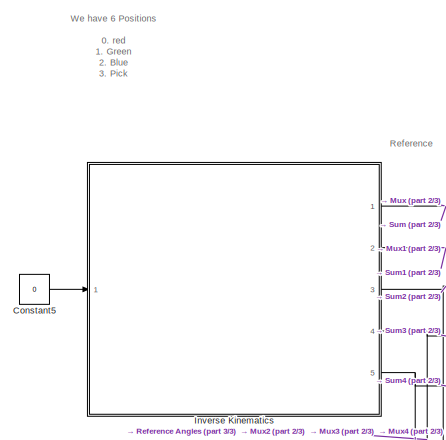
[diagram: root canvas - part 1/3, top left region]
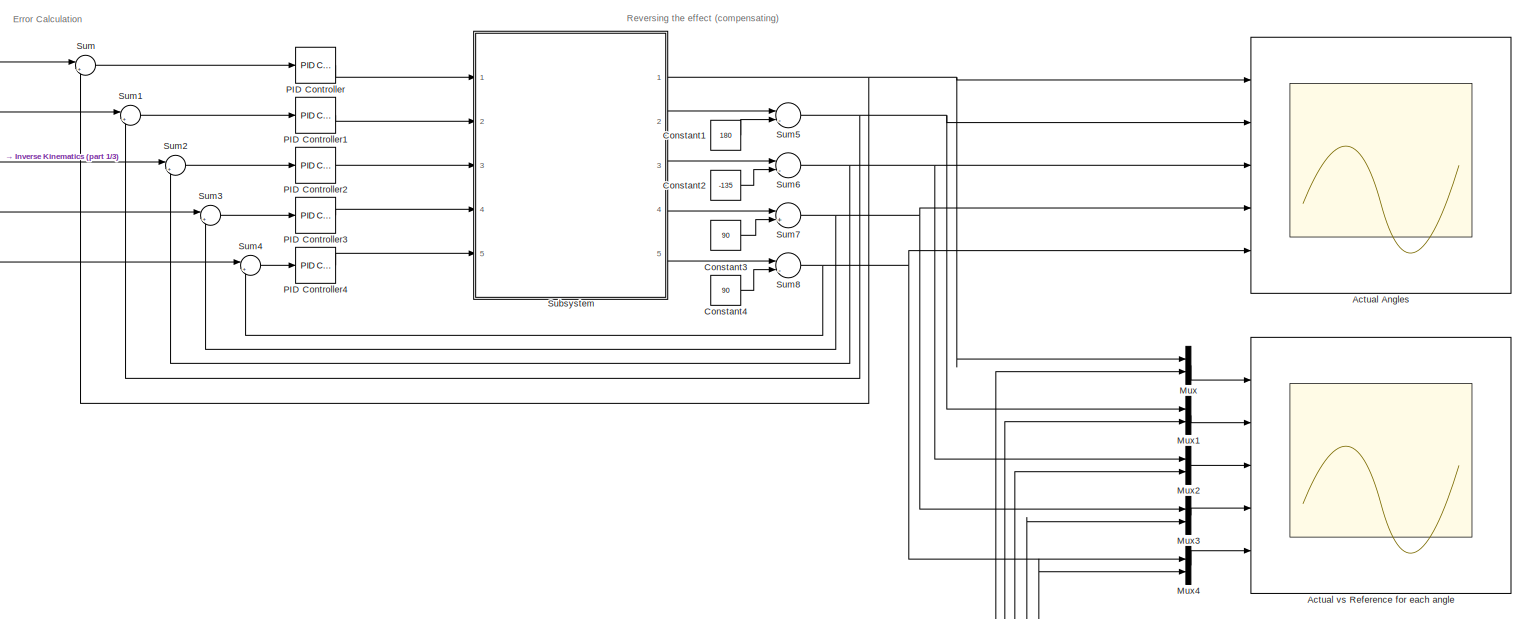
[diagram: root canvas - part 2/3, full width, middle band]
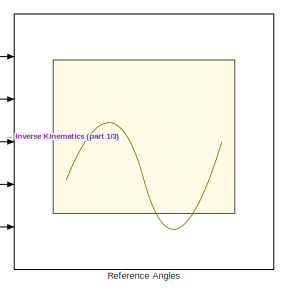
[diagram: root canvas - part 3/3, bottom right region]
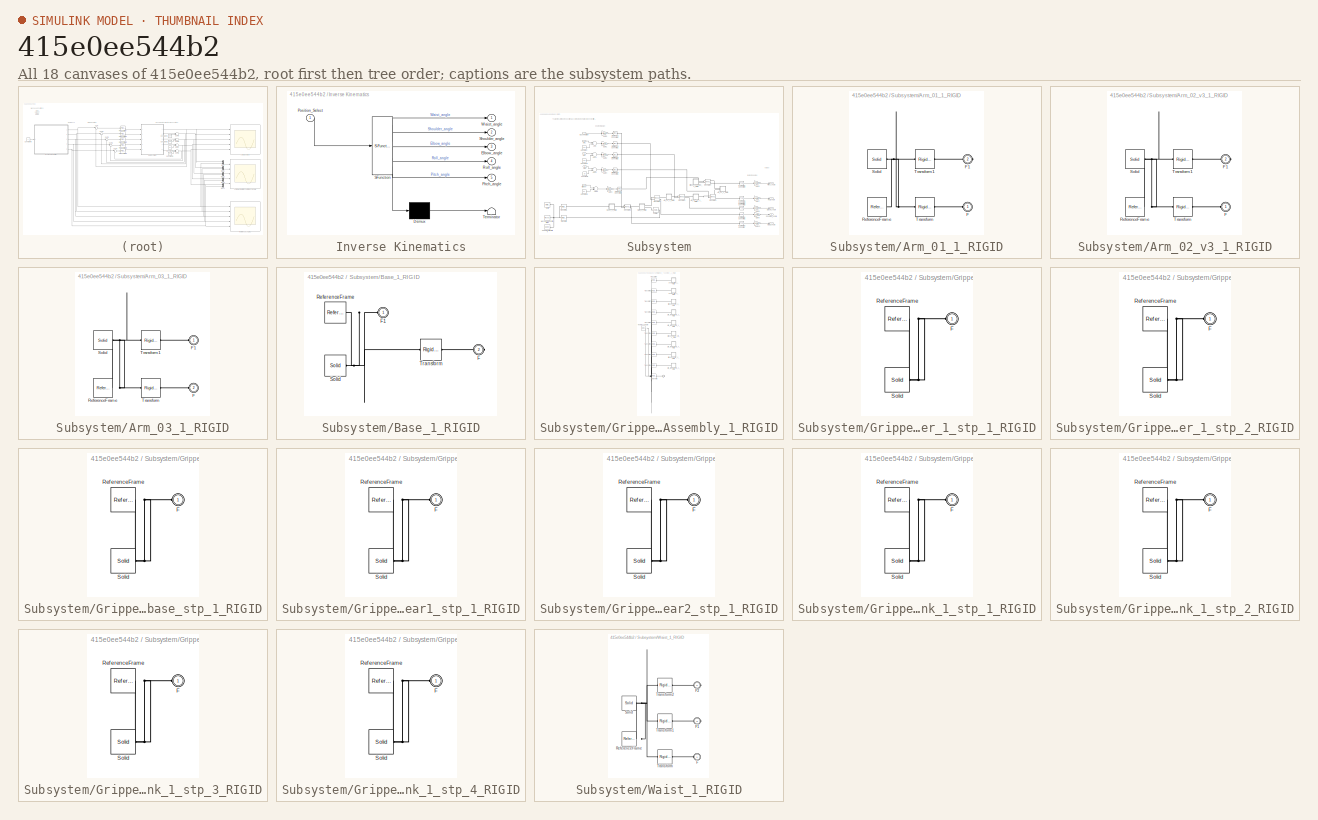
[diagram: thumbnail index - all 18 canvases of the model, root first then tree order]
MODEL slx_415e0ee544b2
KIND model
CONFIG AbsTol = auto
CONFIG EnableMultiTasking = off
CONFIG FixedStep = auto
CONFIG MaxStep = auto
CONFIG MinStep = auto
CONFIG RelTol = 1e-3
CONFIG SampleTimeConstraint = Unconstrained
CONFIG Solver = VariableStepAuto
CONFIG SolverName = VariableStepAuto
CONFIG StartTime = 0.0
CONFIG StopTime = inf
WORKSPACE source: external: MATLAB File  (data not in archive)
BLOCK [Scope] Actual Angles
  Floating = off
  NumInputPorts = 5
  Ports = [5]
  ScopeSpecificationString = Simulink.scopes.TimeScopeBlockCfg('CurrentConfiguration', extmgr.ConfigurationSet(extmgr.Configuration('Core','General UI',true),extmgr.Configuration('Core','Source UI',true),extmgr.Configuration('Sources','WiredSimulink',true),extmgr.Configuration('Visuals','Time Domain',true,'SerializedDisplays',{struct('MinYLimReal','-15.84536','MaxYLimReal','142.60824','YLabelReal','','MinYLimMag','0.00000','M...<+6246ch>
BLOCK [Scope] Actual vs Reference for each angle
  Floating = off
  NumInputPorts = 5
  Ports = [5]
  ScopeSpecificationString = Simulink.scopes.TimeScopeBlockCfg('CurrentConfiguration', extmgr.ConfigurationSet(extmgr.Configuration('Core','General UI',true),extmgr.Configuration('Core','Source UI',true),extmgr.Configuration('Sources','WiredSimulink',true,'DataLoggingVariableName','ScopeData1'),extmgr.Configuration('Visuals','Time Domain',true,'SerializedDisplays',{struct('MinYLimReal','-17.00000','MaxYLimReal','153.00000','Y...<+6468ch>
BLOCK [Constant] Constant1
  Value = 180
BLOCK [Constant] Constant2
  Value = -135
BLOCK [Constant] Constant3
  Value = 90
BLOCK [Constant] Constant4
  Value = 90
BLOCK [Constant] Constant5
  Value = 0
BLOCK [SubSystem] Inverse Kinematics
  ErrorFcn = Stateflow.Translate.translate
  PermitHierarchicalResolution = ExplicitOnly
  Ports = [1, 5]
  RequestExecContextInheritance = off
  SFBlockType = MATLAB Function
  TreatAsAtomicUnit = on
BLOCK [Demux] Inverse Kinematics/ Demux 
  Outputs = 1
  Ports = [1, 1]
BLOCK [S-Function] Inverse Kinematics/ SFunction 
  EnableBusSupport = on
  FunctionName = sf_sfun
  PortCounts = [1 6]
  Ports = [1, 6]
  SFcnIsStateOwnerBlock = off
  SFunctionDeploymentMode = off
  Tag = Stateflow S-Function RoboticArm3DModel_v4 2
BLOCK [Terminator] Inverse Kinematics/ Terminator 
BLOCK [Outport] Inverse Kinematics/Elbow_angle
  IconDisplay = Port number
  Port = 3
BLOCK [Outport] Inverse Kinematics/Pitch_angle
  IconDisplay = Port number
  Port = 5
BLOCK [Inport] Inverse Kinematics/Position_Select
  IconDisplay = Port number
BLOCK [Outport] Inverse Kinematics/Roll_angle
  IconDisplay = Port number
  Port = 4
BLOCK [Outport] Inverse Kinematics/Shoulder_angle
  IconDisplay = Port number
  Port = 2
BLOCK [Outport] Inverse Kinematics/Waist_angle
  IconDisplay = Port number
BLOCK [Mux] Mux
  DisplayOption = bar
  Inputs = 2
  Ports = [2, 1]
BLOCK [Mux] Mux1
  DisplayOption = bar
  Inputs = 2
  Ports = [2, 1]
BLOCK [Mux] Mux2
  DisplayOption = bar
  Inputs = 2
  Ports = [2, 1]
BLOCK [Mux] Mux3
  DisplayOption = bar
  Inputs = 2
  Ports = [2, 1]
BLOCK [Mux] Mux4
  DisplayOption = bar
  Inputs = 2
  Ports = [2, 1]
BLOCK [Reference] PID Controller  REF=simulink/Continuous/PID Controller
  Ports = [1, 1]
  SourceBlock = simulink/Continuous/PID Controller
  SourceProductBaseCode = SL
  SourceProductName = Simulink
  SourceType = PID 1dof
BLOCK [Reference] PID Controller1  REF=simulink/Continuous/PID Controller
  Ports = [1, 1]
  SourceBlock = simulink/Continuous/PID Controller
  SourceProductBaseCode = SL
  SourceProductName = Simulink
  SourceType = PID 1dof
BLOCK [Reference] PID Controller2  REF=simulink/Continuous/PID Controller
  Ports = [1, 1]
  SourceBlock = simulink/Continuous/PID Controller
  SourceProductBaseCode = SL
  SourceProductName = Simulink
  SourceType = PID 1dof
BLOCK [Reference] PID Controller3  REF=simulink/Continuous/PID Controller
  Ports = [1, 1]
  SourceBlock = simulink/Continuous/PID Controller
  SourceProductBaseCode = SL
  SourceProductName = Simulink
  SourceType = PID 1dof
BLOCK [Reference] PID Controller4  REF=simulink/Continuous/PID Controller
  Ports = [1, 1]
  SourceBlock = simulink/Continuous/PID Controller
  SourceProductBaseCode = SL
  SourceProductName = Simulink
  SourceType = PID 1dof
BLOCK [Scope] Reference Angles
  Floating = off
  NumInputPorts = 5
  Ports = [5]
  ScopeSpecificationString = Simulink.scopes.TimeScopeBlockCfg('CurrentConfiguration', extmgr.ConfigurationSet(extmgr.Configuration('Core','General UI',true),extmgr.Configuration('Core','Source UI',true),extmgr.Configuration('Sources','WiredSimulink',true,'DataLoggingVariableName','ScopeData2'),extmgr.Configuration('Visuals','Time Domain',true,'SerializedDisplays',{struct('MinYLimReal','0.9','MaxYLimReal','1.1','YLabelReal','...<+6314ch>
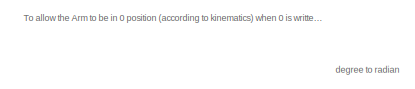
[diagram: Subsystem - part 1/3, top left region]
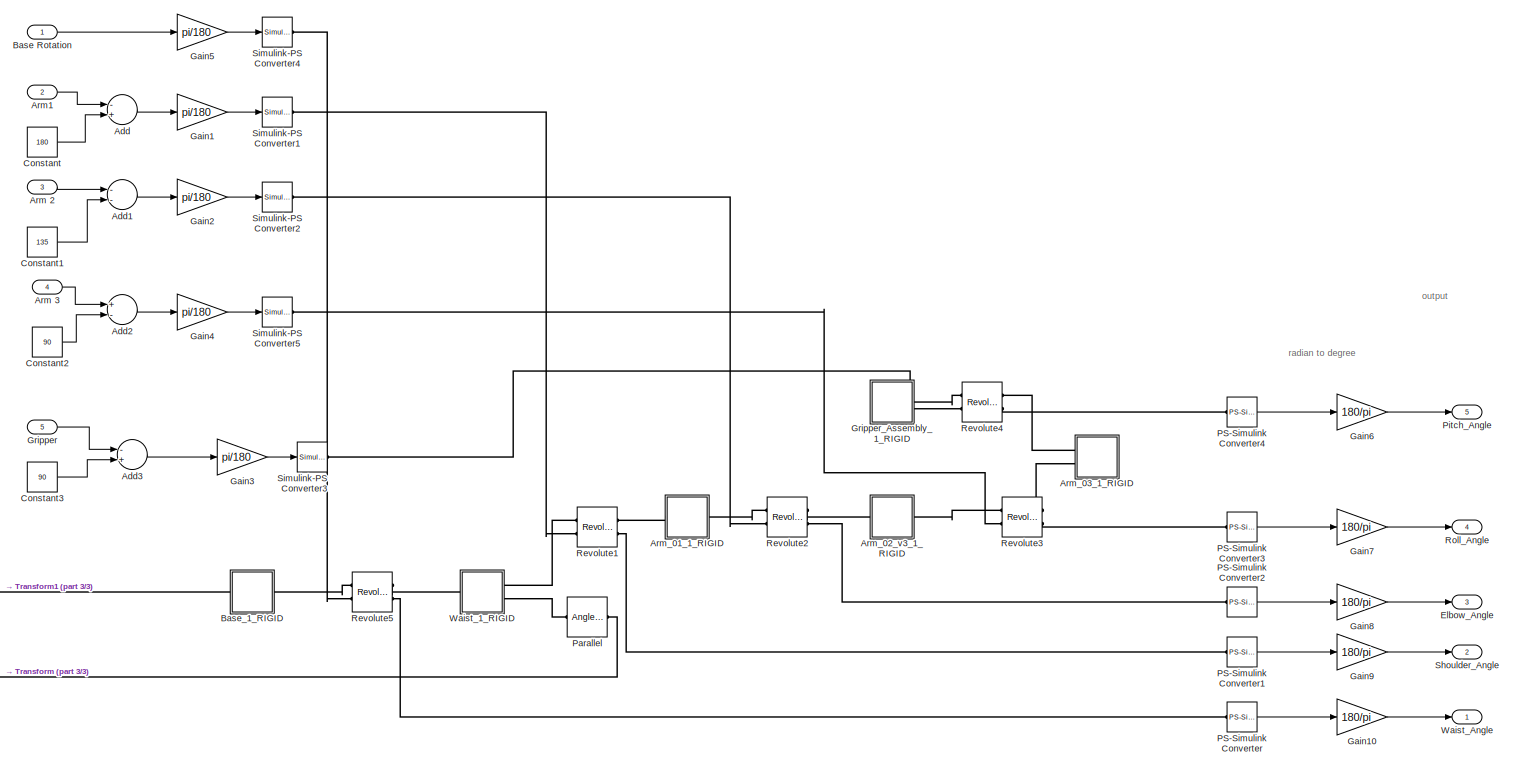
[diagram: Subsystem - part 2/3, most of the canvas]
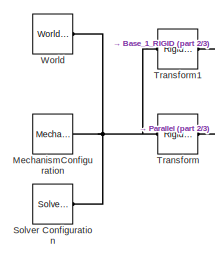
[diagram: Subsystem - part 3/3, bottom left region]
BLOCK [SubSystem] Subsystem
  Ports = [5, 5]
  RequestExecContextInheritance = off
BLOCK [Inport] Subsystem/ Arm 3
  IconDisplay = Port number
  Port = 4
BLOCK [Sum] Subsystem/Add
  InputSameDT = off
  Inputs = -+
  OutDataTypeStr = Inherit: Inherit via internal rule
  Ports = [2, 1]
  SaturateOnIntegerOverflow = off
BLOCK [Sum] Subsystem/Add1
  InputSameDT = off
  Inputs = --
  OutDataTypeStr = Inherit: Inherit via internal rule
  Ports = [2, 1]
  SaturateOnIntegerOverflow = off
BLOCK [Sum] Subsystem/Add2
  InputSameDT = off
  Inputs = +-
  OutDataTypeStr = Inherit: Inherit via internal rule
  Ports = [2, 1]
  SaturateOnIntegerOverflow = off
BLOCK [Sum] Subsystem/Add3
  InputSameDT = off
  Inputs = -+
  OutDataTypeStr = Inherit: Inherit via internal rule
  Ports = [2, 1]
  SaturateOnIntegerOverflow = off
BLOCK [Inport] Subsystem/Arm 2
  IconDisplay = Port number
  Port = 3
BLOCK [Inport] Subsystem/Arm1
  IconDisplay = Port number
  Port = 2
BLOCK [SubSystem] Subsystem/Arm_01_1_RIGID
  Ports = [0, 0, 0, 0, 0, 1, 1]
  RequestExecContextInheritance = off
BLOCK [PMIOPort] Subsystem/Arm_01_1_RIGID/F
  Side = Left
BLOCK [PMIOPort] Subsystem/Arm_01_1_RIGID/F1
  Port = 2
  Side = Right
BLOCK [Reference] Subsystem/Arm_01_1_RIGID/ReferenceFrame  REF=sm_lib/Frames and
Transforms/Reference
Frame
  Ports = [0, 0, 0, 0, 0, 0, 1]
  SourceBlock = sm_lib/Frames and\nTransforms/Reference\nFrame
  SourceProductBaseCode = MS
  SourceProductName = Simscape Multibody
  SourceType = Reference\nFrame
BLOCK [Reference] Subsystem/Arm_01_1_RIGID/Solid  REF=sm_lib/Body Elements/Solid
  Ports = [0, 0, 0, 0, 0, 0, 1]
  SourceBlock = sm_lib/Body Elements/Solid
  SourceProductBaseCode = MS
  SourceProductName = Simscape Multibody
  SourceType = Solid
BLOCK [Reference] Subsystem/Arm_01_1_RIGID/Transform  REF=sm_lib/Frames and
Transforms/Rigid
Transform
  Ports = [0, 0, 0, 0, 0, 1, 1]
  SourceBlock = sm_lib/Frames and\nTransforms/Rigid\nTransform
  SourceProductBaseCode = MS
  SourceProductName = Simscape Multibody
  SourceType = Rigid\nTransform
BLOCK [Reference] Subsystem/Arm_01_1_RIGID/Transform1  REF=sm_lib/Frames and
Transforms/Rigid
Transform
  Ports = [0, 0, 0, 0, 0, 1, 1]
  SourceBlock = sm_lib/Frames and\nTransforms/Rigid\nTransform
  SourceProductBaseCode = MS
  SourceProductName = Simscape Multibody
  SourceType = Rigid\nTransform
BLOCK [SubSystem] Subsystem/Arm_02_v3_1_RIGID
  Ports = [0, 0, 0, 0, 0, 1, 1]
  RequestExecContextInheritance = off
BLOCK [PMIOPort] Subsystem/Arm_02_v3_1_RIGID/F
  Side = Left
BLOCK [PMIOPort] Subsystem/Arm_02_v3_1_RIGID/F1
  Port = 2
  Side = Right
BLOCK [Reference] Subsystem/Arm_02_v3_1_RIGID/ReferenceFrame  REF=sm_lib/Frames and
Transforms/Reference
Frame
  Ports = [0, 0, 0, 0, 0, 0, 1]
  SourceBlock = sm_lib/Frames and\nTransforms/Reference\nFrame
  SourceProductBaseCode = MS
  SourceProductName = Simscape Multibody
  SourceType = Reference\nFrame
BLOCK [Reference] Subsystem/Arm_02_v3_1_RIGID/Solid  REF=sm_lib/Body Elements/Solid
  Ports = [0, 0, 0, 0, 0, 0, 1]
  SourceBlock = sm_lib/Body Elements/Solid
  SourceProductBaseCode = MS
  SourceProductName = Simscape Multibody
  SourceType = Solid
BLOCK [Reference] Subsystem/Arm_02_v3_1_RIGID/Transform  REF=sm_lib/Frames and
Transforms/Rigid
Transform
  Ports = [0, 0, 0, 0, 0, 1, 1]
  SourceBlock = sm_lib/Frames and\nTransforms/Rigid\nTransform
  SourceProductBaseCode = MS
  SourceProductName = Simscape Multibody
  SourceType = Rigid\nTransform
BLOCK [Reference] Subsystem/Arm_02_v3_1_RIGID/Transform1  REF=sm_lib/Frames and
Transforms/Rigid
Transform
  Ports = [0, 0, 0, 0, 0, 1, 1]
  SourceBlock = sm_lib/Frames and\nTransforms/Rigid\nTransform
  SourceProductBaseCode = MS
  SourceProductName = Simscape Multibody
  SourceType = Rigid\nTransform
BLOCK [SubSystem] Subsystem/Arm_03_1_RIGID
  Ports = [0, 0, 0, 0, 0, 2]
  RequestExecContextInheritance = off
BLOCK [PMIOPort] Subsystem/Arm_03_1_RIGID/F
  Port = 2
  Side = Left
BLOCK [PMIOPort] Subsystem/Arm_03_1_RIGID/F1
  Side = Left
BLOCK [Reference] Subsystem/Arm_03_1_RIGID/ReferenceFrame  REF=sm_lib/Frames and
Transforms/Reference
Frame
  Ports = [0, 0, 0, 0, 0, 0, 1]
  SourceBlock = sm_lib/Frames and\nTransforms/Reference\nFrame
  SourceProductBaseCode = MS
  SourceProductName = Simscape Multibody
  SourceType = Reference\nFrame
BLOCK [Reference] Subsystem/Arm_03_1_RIGID/Solid  REF=sm_lib/Body Elements/Solid
  Ports = [0, 0, 0, 0, 0, 0, 1]
  SourceBlock = sm_lib/Body Elements/Solid
  SourceProductBaseCode = MS
  SourceProductName = Simscape Multibody
  SourceType = Solid
BLOCK [Reference] Subsystem/Arm_03_1_RIGID/Transform  REF=sm_lib/Frames and
Transforms/Rigid
Transform
  Ports = [0, 0, 0, 0, 0, 1, 1]
  SourceBlock = sm_lib/Frames and\nTransforms/Rigid\nTransform
  SourceProductBaseCode = MS
  SourceProductName = Simscape Multibody
  SourceType = Rigid\nTransform
BLOCK [Reference] Subsystem/Arm_03_1_RIGID/Transform1  REF=sm_lib/Frames and
Transforms/Rigid
Transform
  Ports = [0, 0, 0, 0, 0, 1, 1]
  SourceBlock = sm_lib/Frames and\nTransforms/Rigid\nTransform
  SourceProductBaseCode = MS
  SourceProductName = Simscape Multibody
  SourceType = Rigid\nTransform
BLOCK [Inport] Subsystem/Base Rotation
  IconDisplay = Port number
BLOCK [SubSystem] Subsystem/Base_1_RIGID
  Ports = [0, 0, 0, 0, 0, 1, 1]
  RequestExecContextInheritance = off
BLOCK [PMIOPort] Subsystem/Base_1_RIGID/F
  Port = 2
  Side = Right
BLOCK [PMIOPort] Subsystem/Base_1_RIGID/F1
  Side = Left
BLOCK [Reference] Subsystem/Base_1_RIGID/ReferenceFrame  REF=sm_lib/Frames and
Transforms/Reference
Frame
  Ports = [0, 0, 0, 0, 0, 0, 1]
  SourceBlock = sm_lib/Frames and\nTransforms/Reference\nFrame
  SourceProductBaseCode = MS
  SourceProductName = Simscape Multibody
  SourceType = Reference\nFrame
BLOCK [Reference] Subsystem/Base_1_RIGID/Solid  REF=sm_lib/Body Elements/Solid
  Ports = [0, 0, 0, 0, 0, 0, 1]
  SourceBlock = sm_lib/Body Elements/Solid
  SourceProductBaseCode = MS
  SourceProductName = Simscape Multibody
  SourceType = Solid
BLOCK [Reference] Subsystem/Base_1_RIGID/Transform  REF=sm_lib/Frames and
Transforms/Rigid
Transform
  Ports = [0, 0, 0, 0, 0, 1, 1]
  SourceBlock = sm_lib/Frames and\nTransforms/Rigid\nTransform
  SourceProductBaseCode = MS
  SourceProductName = Simscape Multibody
  SourceType = Rigid\nTransform
BLOCK [Constant] Subsystem/Constant
  Value = 180
BLOCK [Constant] Subsystem/Constant1
  Value = 135
BLOCK [Constant] Subsystem/Constant2
  Value = 90
BLOCK [Constant] Subsystem/Constant3
  Value = 90
BLOCK [Outport] Subsystem/Elbow_Angle
  IconDisplay = Port number
  Port = 3
BLOCK [Gain] Subsystem/Gain1
  Gain = pi/180
  OutDataTypeStr = Inherit: Inherit via internal rule
  ParamDataTypeStr = Inherit: Inherit via internal rule
  SaturateOnIntegerOverflow = off
BLOCK [Gain] Subsystem/Gain10
  Gain = 180/pi
  OutDataTypeStr = Inherit: Inherit via internal rule
  ParamDataTypeStr = Inherit: Inherit via internal rule
  SaturateOnIntegerOverflow = off
BLOCK [Gain] Subsystem/Gain2
  Gain = pi/180
  OutDataTypeStr = Inherit: Inherit via internal rule
  ParamDataTypeStr = Inherit: Inherit via internal rule
  SaturateOnIntegerOverflow = off
BLOCK [Gain] Subsystem/Gain3
  Gain = pi/180
  OutDataTypeStr = Inherit: Inherit via internal rule
  ParamDataTypeStr = Inherit: Inherit via internal rule
  SaturateOnIntegerOverflow = off
BLOCK [Gain] Subsystem/Gain4
  Gain = pi/180
  OutDataTypeStr = Inherit: Inherit via internal rule
  ParamDataTypeStr = Inherit: Inherit via internal rule
  SaturateOnIntegerOverflow = off
BLOCK [Gain] Subsystem/Gain5
  Gain = pi/180
  OutDataTypeStr = Inherit: Inherit via internal rule
  ParamDataTypeStr = Inherit: Inherit via internal rule
  SaturateOnIntegerOverflow = off
BLOCK [Gain] Subsystem/Gain6
  Gain = 180/pi
  OutDataTypeStr = Inherit: Inherit via internal rule
  ParamDataTypeStr = Inherit: Inherit via internal rule
  SaturateOnIntegerOverflow = off
BLOCK [Gain] Subsystem/Gain7
  Gain = 180/pi
  OutDataTypeStr = Inherit: Inherit via internal rule
  ParamDataTypeStr = Inherit: Inherit via internal rule
  SaturateOnIntegerOverflow = off
BLOCK [Gain] Subsystem/Gain8
  Gain = 180/pi
  OutDataTypeStr = Inherit: Inherit via internal rule
  ParamDataTypeStr = Inherit: Inherit via internal rule
  SaturateOnIntegerOverflow = off
BLOCK [Gain] Subsystem/Gain9
  Gain = 180/pi
  OutDataTypeStr = Inherit: Inherit via internal rule
  ParamDataTypeStr = Inherit: Inherit via internal rule
  SaturateOnIntegerOverflow = off
BLOCK [Inport] Subsystem/Gripper
  IconDisplay = Port number
  Port = 5
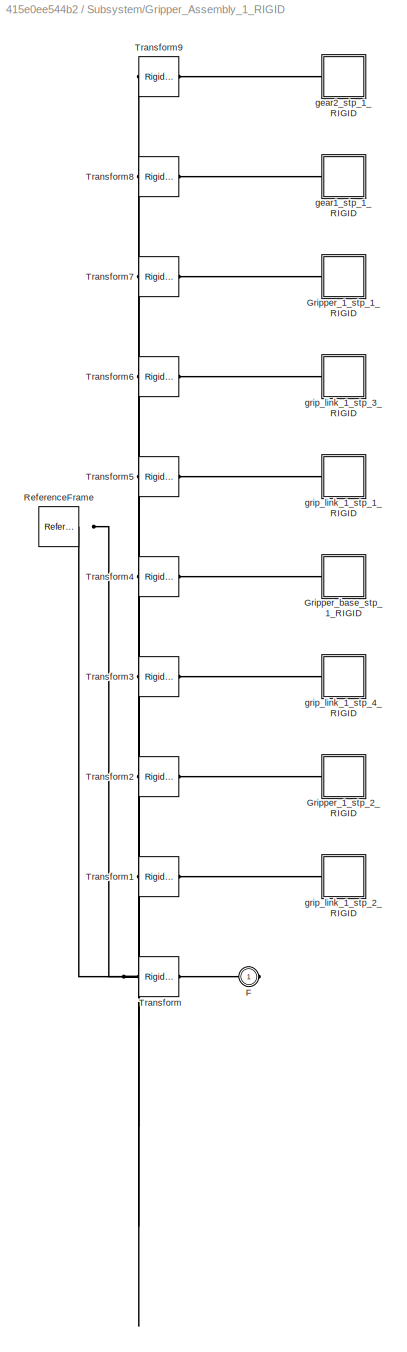
BLOCK [SubSystem] Subsystem/Gripper_Assembly_1_RIGID
  Ports = [0, 0, 0, 0, 0, 0, 1]
  RequestExecContextInheritance = off
BLOCK [PMIOPort] Subsystem/Gripper_Assembly_1_RIGID/F
  Side = Right
BLOCK [SubSystem] Subsystem/Gripper_Assembly_1_RIGID/Gripper_1_stp_1_RIGID
  Ports = [0, 0, 0, 0, 0, 1]
  RequestExecContextInheritance = off
BLOCK [PMIOPort] Subsystem/Gripper_Assembly_1_RIGID/Gripper_1_stp_1_RIGID/F
  Side = Left
BLOCK [Reference] Subsystem/Gripper_Assembly_1_RIGID/Gripper_1_stp_1_RIGID/ReferenceFrame  REF=sm_lib/Frames and
Transforms/Reference
Frame
  Ports = [0, 0, 0, 0, 0, 0, 1]
  SourceBlock = sm_lib/Frames and\nTransforms/Reference\nFrame
  SourceProductBaseCode = MS
  SourceProductName = Simscape Multibody
  SourceType = Reference\nFrame
BLOCK [Reference] Subsystem/Gripper_Assembly_1_RIGID/Gripper_1_stp_1_RIGID/Solid  REF=sm_lib/Body Elements/Solid
  Ports = [0, 0, 0, 0, 0, 0, 1]
  SourceBlock = sm_lib/Body Elements/Solid
  SourceProductBaseCode = MS
  SourceProductName = Simscape Multibody
  SourceType = Solid
BLOCK [SubSystem] Subsystem/Gripper_Assembly_1_RIGID/Gripper_1_stp_2_RIGID
  Ports = [0, 0, 0, 0, 0, 1]
  RequestExecContextInheritance = off
BLOCK [PMIOPort] Subsystem/Gripper_Assembly_1_RIGID/Gripper_1_stp_2_RIGID/F
  Side = Left
BLOCK [Reference] Subsystem/Gripper_Assembly_1_RIGID/Gripper_1_stp_2_RIGID/ReferenceFrame  REF=sm_lib/Frames and
Transforms/Reference
Frame
  Ports = [0, 0, 0, 0, 0, 0, 1]
  SourceBlock = sm_lib/Frames and\nTransforms/Reference\nFrame
  SourceProductBaseCode = MS
  SourceProductName = Simscape Multibody
  SourceType = Reference\nFrame
BLOCK [Reference] Subsystem/Gripper_Assembly_1_RIGID/Gripper_1_stp_2_RIGID/Solid  REF=sm_lib/Body Elements/Solid
  Ports = [0, 0, 0, 0, 0, 0, 1]
  SourceBlock = sm_lib/Body Elements/Solid
  SourceProductBaseCode = MS
  SourceProductName = Simscape Multibody
  SourceType = Solid
BLOCK [SubSystem] Subsystem/Gripper_Assembly_1_RIGID/Gripper_base_stp_1_RIGID
  Ports = [0, 0, 0, 0, 0, 1]
  RequestExecContextInheritance = off
BLOCK [PMIOPort] Subsystem/Gripper_Assembly_1_RIGID/Gripper_base_stp_1_RIGID/F
  Side = Left
BLOCK [Reference] Subsystem/Gripper_Assembly_1_RIGID/Gripper_base_stp_1_RIGID/ReferenceFrame  REF=sm_lib/Frames and
Transforms/Reference
Frame
  Ports = [0, 0, 0, 0, 0, 0, 1]
  SourceBlock = sm_lib/Frames and\nTransforms/Reference\nFrame
  SourceProductBaseCode = MS
  SourceProductName = Simscape Multibody
  SourceType = Reference\nFrame
BLOCK [Reference] Subsystem/Gripper_Assembly_1_RIGID/Gripper_base_stp_1_RIGID/Solid  REF=sm_lib/Body Elements/Solid
  Ports = [0, 0, 0, 0, 0, 0, 1]
  SourceBlock = sm_lib/Body Elements/Solid
  SourceProductBaseCode = MS
  SourceProductName = Simscape Multibody
  SourceType = Solid
BLOCK [Reference] Subsystem/Gripper_Assembly_1_RIGID/ReferenceFrame  REF=sm_lib/Frames and
Transforms/Reference
Frame
  Ports = [0, 0, 0, 0, 0, 0, 1]
  SourceBlock = sm_lib/Frames and\nTransforms/Reference\nFrame
  SourceProductBaseCode = MS
  SourceProductName = Simscape Multibody
  SourceType = Reference\nFrame
BLOCK [Reference] Subsystem/Gripper_Assembly_1_RIGID/Transform  REF=sm_lib/Frames and
Transforms/Rigid
Transform
  Ports = [0, 0, 0, 0, 0, 1, 1]
  SourceBlock = sm_lib/Frames and\nTransforms/Rigid\nTransform
  SourceProductBaseCode = MS
  SourceProductName = Simscape Multibody
  SourceType = Rigid\nTransform
BLOCK [Reference] Subsystem/Gripper_Assembly_1_RIGID/Transform1  REF=sm_lib/Frames and
Transforms/Rigid
Transform
  Ports = [0, 0, 0, 0, 0, 1, 1]
  SourceBlock = sm_lib/Frames and\nTransforms/Rigid\nTransform
  SourceProductBaseCode = MS
  SourceProductName = Simscape Multibody
  SourceType = Rigid\nTransform
BLOCK [Reference] Subsystem/Gripper_Assembly_1_RIGID/Transform2  REF=sm_lib/Frames and
Transforms/Rigid
Transform
  Ports = [0, 0, 0, 0, 0, 1, 1]
  SourceBlock = sm_lib/Frames and\nTransforms/Rigid\nTransform
  SourceProductBaseCode = MS
  SourceProductName = Simscape Multibody
  SourceType = Rigid\nTransform
BLOCK [Reference] Subsystem/Gripper_Assembly_1_RIGID/Transform3  REF=sm_lib/Frames and
Transforms/Rigid
Transform
  Ports = [0, 0, 0, 0, 0, 1, 1]
  SourceBlock = sm_lib/Frames and\nTransforms/Rigid\nTransform
  SourceProductBaseCode = MS
  SourceProductName = Simscape Multibody
  SourceType = Rigid\nTransform
BLOCK [Reference] Subsystem/Gripper_Assembly_1_RIGID/Transform4  REF=sm_lib/Frames and
Transforms/Rigid
Transform
  Ports = [0, 0, 0, 0, 0, 1, 1]
  SourceBlock = sm_lib/Frames and\nTransforms/Rigid\nTransform
  SourceProductBaseCode = MS
  SourceProductName = Simscape Multibody
  SourceType = Rigid\nTransform
BLOCK [Reference] Subsystem/Gripper_Assembly_1_RIGID/Transform5  REF=sm_lib/Frames and
Transforms/Rigid
Transform
  Ports = [0, 0, 0, 0, 0, 1, 1]
  SourceBlock = sm_lib/Frames and\nTransforms/Rigid\nTransform
  SourceProductBaseCode = MS
  SourceProductName = Simscape Multibody
  SourceType = Rigid\nTransform
BLOCK [Reference] Subsystem/Gripper_Assembly_1_RIGID/Transform6  REF=sm_lib/Frames and
Transforms/Rigid
Transform
  Ports = [0, 0, 0, 0, 0, 1, 1]
  SourceBlock = sm_lib/Frames and\nTransforms/Rigid\nTransform
  SourceProductBaseCode = MS
  SourceProductName = Simscape Multibody
  SourceType = Rigid\nTransform
BLOCK [Reference] Subsystem/Gripper_Assembly_1_RIGID/Transform7  REF=sm_lib/Frames and
Transforms/Rigid
Transform
  Ports = [0, 0, 0, 0, 0, 1, 1]
  SourceBlock = sm_lib/Frames and\nTransforms/Rigid\nTransform
  SourceProductBaseCode = MS
  SourceProductName = Simscape Multibody
  SourceType = Rigid\nTransform
BLOCK [Reference] Subsystem/Gripper_Assembly_1_RIGID/Transform8  REF=sm_lib/Frames and
Transforms/Rigid
Transform
  Ports = [0, 0, 0, 0, 0, 1, 1]
  SourceBlock = sm_lib/Frames and\nTransforms/Rigid\nTransform
  SourceProductBaseCode = MS
  SourceProductName = Simscape Multibody
  SourceType = Rigid\nTransform
BLOCK [Reference] Subsystem/Gripper_Assembly_1_RIGID/Transform9  REF=sm_lib/Frames and
Transforms/Rigid
Transform
  Ports = [0, 0, 0, 0, 0, 1, 1]
  SourceBlock = sm_lib/Frames and\nTransforms/Rigid\nTransform
  SourceProductBaseCode = MS
  SourceProductName = Simscape Multibody
  SourceType = Rigid\nTransform
BLOCK [SubSystem] Subsystem/Gripper_Assembly_1_RIGID/gear1_stp_1_RIGID
  Ports = [0, 0, 0, 0, 0, 1]
  RequestExecContextInheritance = off
BLOCK [PMIOPort] Subsystem/Gripper_Assembly_1_RIGID/gear1_stp_1_RIGID/F
  Side = Left
BLOCK [Reference] Subsystem/Gripper_Assembly_1_RIGID/gear1_stp_1_RIGID/ReferenceFrame  REF=sm_lib/Frames and
Transforms/Reference
Frame
  Ports = [0, 0, 0, 0, 0, 0, 1]
  SourceBlock = sm_lib/Frames and\nTransforms/Reference\nFrame
  SourceProductBaseCode = MS
  SourceProductName = Simscape Multibody
  SourceType = Reference\nFrame
BLOCK [Reference] Subsystem/Gripper_Assembly_1_RIGID/gear1_stp_1_RIGID/Solid  REF=sm_lib/Body Elements/Solid
  Ports = [0, 0, 0, 0, 0, 0, 1]
  SourceBlock = sm_lib/Body Elements/Solid
  SourceProductBaseCode = MS
  SourceProductName = Simscape Multibody
  SourceType = Solid
BLOCK [SubSystem] Subsystem/Gripper_Assembly_1_RIGID/gear2_stp_1_RIGID
  Ports = [0, 0, 0, 0, 0, 1]
  RequestExecContextInheritance = off
BLOCK [PMIOPort] Subsystem/Gripper_Assembly_1_RIGID/gear2_stp_1_RIGID/F
  Side = Left
BLOCK [Reference] Subsystem/Gripper_Assembly_1_RIGID/gear2_stp_1_RIGID/ReferenceFrame  REF=sm_lib/Frames and
Transforms/Reference
Frame
  Ports = [0, 0, 0, 0, 0, 0, 1]
  SourceBlock = sm_lib/Frames and\nTransforms/Reference\nFrame
  SourceProductBaseCode = MS
  SourceProductName = Simscape Multibody
  SourceType = Reference\nFrame
BLOCK [Reference] Subsystem/Gripper_Assembly_1_RIGID/gear2_stp_1_RIGID/Solid  REF=sm_lib/Body Elements/Solid
  Ports = [0, 0, 0, 0, 0, 0, 1]
  SourceBlock = sm_lib/Body Elements/Solid
  SourceProductBaseCode = MS
  SourceProductName = Simscape Multibody
  SourceType = Solid
BLOCK [SubSystem] Subsystem/Gripper_Assembly_1_RIGID/grip_link_1_stp_1_RIGID
  Ports = [0, 0, 0, 0, 0, 1]
  RequestExecContextInheritance = off
BLOCK [PMIOPort] Subsystem/Gripper_Assembly_1_RIGID/grip_link_1_stp_1_RIGID/F
  Side = Left
BLOCK [Reference] Subsystem/Gripper_Assembly_1_RIGID/grip_link_1_stp_1_RIGID/ReferenceFrame  REF=sm_lib/Frames and
Transforms/Reference
Frame
  Ports = [0, 0, 0, 0, 0, 0, 1]
  SourceBlock = sm_lib/Frames and\nTransforms/Reference\nFrame
  SourceProductBaseCode = MS
  SourceProductName = Simscape Multibody
  SourceType = Reference\nFrame
BLOCK [Reference] Subsystem/Gripper_Assembly_1_RIGID/grip_link_1_stp_1_RIGID/Solid  REF=sm_lib/Body Elements/Solid
  Ports = [0, 0, 0, 0, 0, 0, 1]
  SourceBlock = sm_lib/Body Elements/Solid
  SourceProductBaseCode = MS
  SourceProductName = Simscape Multibody
  SourceType = Solid
BLOCK [SubSystem] Subsystem/Gripper_Assembly_1_RIGID/grip_link_1_stp_2_RIGID
  Ports = [0, 0, 0, 0, 0, 1]
  RequestExecContextInheritance = off
BLOCK [PMIOPort] Subsystem/Gripper_Assembly_1_RIGID/grip_link_1_stp_2_RIGID/F
  Side = Left
BLOCK [Reference] Subsystem/Gripper_Assembly_1_RIGID/grip_link_1_stp_2_RIGID/ReferenceFrame  REF=sm_lib/Frames and
Transforms/Reference
Frame
  Ports = [0, 0, 0, 0, 0, 0, 1]
  SourceBlock = sm_lib/Frames and\nTransforms/Reference\nFrame
  SourceProductBaseCode = MS
  SourceProductName = Simscape Multibody
  SourceType = Reference\nFrame
BLOCK [Reference] Subsystem/Gripper_Assembly_1_RIGID/grip_link_1_stp_2_RIGID/Solid  REF=sm_lib/Body Elements/Solid
  Ports = [0, 0, 0, 0, 0, 0, 1]
  SourceBlock = sm_lib/Body Elements/Solid
  SourceProductBaseCode = MS
  SourceProductName = Simscape Multibody
  SourceType = Solid
BLOCK [SubSystem] Subsystem/Gripper_Assembly_1_RIGID/grip_link_1_stp_3_RIGID
  Ports = [0, 0, 0, 0, 0, 1]
  RequestExecContextInheritance = off
BLOCK [PMIOPort] Subsystem/Gripper_Assembly_1_RIGID/grip_link_1_stp_3_RIGID/F
  Side = Left
BLOCK [Reference] Subsystem/Gripper_Assembly_1_RIGID/grip_link_1_stp_3_RIGID/ReferenceFrame  REF=sm_lib/Frames and
Transforms/Reference
Frame
  Ports = [0, 0, 0, 0, 0, 0, 1]
  SourceBlock = sm_lib/Frames and\nTransforms/Reference\nFrame
  SourceProductBaseCode = MS
  SourceProductName = Simscape Multibody
  SourceType = Reference\nFrame
BLOCK [Reference] Subsystem/Gripper_Assembly_1_RIGID/grip_link_1_stp_3_RIGID/Solid  REF=sm_lib/Body Elements/Solid
  Ports = [0, 0, 0, 0, 0, 0, 1]
  SourceBlock = sm_lib/Body Elements/Solid
  SourceProductBaseCode = MS
  SourceProductName = Simscape Multibody
  SourceType = Solid
BLOCK [SubSystem] Subsystem/Gripper_Assembly_1_RIGID/grip_link_1_stp_4_RIGID
  Ports = [0, 0, 0, 0, 0, 1]
  RequestExecContextInheritance = off
BLOCK [PMIOPort] Subsystem/Gripper_Assembly_1_RIGID/grip_link_1_stp_4_RIGID/F
  Side = Left
BLOCK [Reference] Subsystem/Gripper_Assembly_1_RIGID/grip_link_1_stp_4_RIGID/ReferenceFrame  REF=sm_lib/Frames and
Transforms/Reference
Frame
  Ports = [0, 0, 0, 0, 0, 0, 1]
  SourceBlock = sm_lib/Frames and\nTransforms/Reference\nFrame
  SourceProductBaseCode = MS
  SourceProductName = Simscape Multibody
  SourceType = Reference\nFrame
BLOCK [Reference] Subsystem/Gripper_Assembly_1_RIGID/grip_link_1_stp_4_RIGID/Solid  REF=sm_lib/Body Elements/Solid
  Ports = [0, 0, 0, 0, 0, 0, 1]
  SourceBlock = sm_lib/Body Elements/Solid
  SourceProductBaseCode = MS
  SourceProductName = Simscape Multibody
  SourceType = Solid
BLOCK [Reference] Subsystem/MechanismConfiguration  REF=sm_lib/Utilities/Mechanism
Configuration
  Ports = [0, 0, 0, 0, 0, 0, 1]
  SourceBlock = sm_lib/Utilities/Mechanism\nConfiguration
  SourceProductBaseCode = MS
  SourceProductName = Simscape Multibody
  SourceType = Mechanism\nConfiguration
BLOCK [Reference] Subsystem/PS-Simulink Converter  REF=nesl_utility/PS-Simulink
Converter
  Ports = [0, 1, 0, 0, 0, 1]
  SourceBlock = nesl_utility/PS-Simulink\nConverter
  SourceProductBaseCode = SS
  SourceProductName = Simscape
  SourceType = PS-Simulink\nConverter
BLOCK [Reference] Subsystem/PS-Simulink Converter1  REF=nesl_utility/PS-Simulink
Converter
  Ports = [0, 1, 0, 0, 0, 1]
  SourceBlock = nesl_utility/PS-Simulink\nConverter
  SourceProductBaseCode = SS
  SourceProductName = Simscape
  SourceType = PS-Simulink\nConverter
BLOCK [Reference] Subsystem/PS-Simulink Converter2  REF=nesl_utility/PS-Simulink
Converter
  Ports = [0, 1, 0, 0, 0, 1]
  SourceBlock = nesl_utility/PS-Simulink\nConverter
  SourceProductBaseCode = SS
  SourceProductName = Simscape
  SourceType = PS-Simulink\nConverter
BLOCK [Reference] Subsystem/PS-Simulink Converter3  REF=nesl_utility/PS-Simulink
Converter
  Ports = [0, 1, 0, 0, 0, 1]
  SourceBlock = nesl_utility/PS-Simulink\nConverter
  SourceProductBaseCode = SS
  SourceProductName = Simscape
  SourceType = PS-Simulink\nConverter
BLOCK [Reference] Subsystem/PS-Simulink Converter4  REF=nesl_utility/PS-Simulink
Converter
  Ports = [0, 1, 0, 0, 0, 1]
  SourceBlock = nesl_utility/PS-Simulink\nConverter
  SourceProductBaseCode = SS
  SourceProductName = Simscape
  SourceType = PS-Simulink\nConverter
BLOCK [Reference] Subsystem/Parallel  REF=sm_lib/Constraints/Angle
Constraint
  Ports = [0, 0, 0, 0, 0, 1, 1]
  SourceBlock = sm_lib/Constraints/Angle\nConstraint
  SourceProductBaseCode = MS
  SourceProductName = Simscape Multibody
  SourceType = Angle\nConstraint
BLOCK [Outport] Subsystem/Pitch_Angle
  IconDisplay = Port number
  Port = 5
BLOCK [Reference] Subsystem/Revolute1  REF=sm_lib/Joints/Revolute Joint
  Ports = [0, 0, 0, 0, 0, 2, 2]
  SourceBlock = sm_lib/Joints/Revolute Joint
  SourceProductBaseCode = MS
  SourceProductName = Simscape Multibody
  SourceType = Revolute Joint
BLOCK [Reference] Subsystem/Revolute2  REF=sm_lib/Joints/Revolute Joint
  Ports = [0, 0, 0, 0, 0, 2, 2]
  SourceBlock = sm_lib/Joints/Revolute Joint
  SourceProductBaseCode = MS
  SourceProductName = Simscape Multibody
  SourceType = Revolute Joint
BLOCK [Reference] Subsystem/Revolute3  REF=sm_lib/Joints/Revolute Joint
  Ports = [0, 0, 0, 0, 0, 2, 2]
  SourceBlock = sm_lib/Joints/Revolute Joint
  SourceProductBaseCode = MS
  SourceProductName = Simscape Multibody
  SourceType = Revolute Joint
BLOCK [Reference] Subsystem/Revolute4  REF=sm_lib/Joints/Revolute Joint
  Ports = [0, 0, 0, 0, 0, 2, 2]
  SourceBlock = sm_lib/Joints/Revolute Joint
  SourceProductBaseCode = MS
  SourceProductName = Simscape Multibody
  SourceType = Revolute Joint
BLOCK [Reference] Subsystem/Revolute5  REF=sm_lib/Joints/Revolute Joint
  Ports = [0, 0, 0, 0, 0, 2, 2]
  SourceBlock = sm_lib/Joints/Revolute Joint
  SourceProductBaseCode = MS
  SourceProductName = Simscape Multibody
  SourceType = Revolute Joint
BLOCK [Outport] Subsystem/Roll_Angle
  IconDisplay = Port number
  Port = 4
BLOCK [Outport] Subsystem/Shoulder_Angle
  IconDisplay = Port number
  Port = 2
BLOCK [Reference] Subsystem/Simulink-PS Converter1  REF=nesl_utility/Simulink-PS
Converter
  Ports = [1, 0, 0, 0, 0, 0, 1]
  SourceBlock = nesl_utility/Simulink-PS\nConverter
  SourceProductBaseCode = SS
  SourceProductName = Simscape
  SourceType = Simulink-PS\nConverter
BLOCK [Reference] Subsystem/Simulink-PS Converter2  REF=nesl_utility/Simulink-PS
Converter
  Ports = [1, 0, 0, 0, 0, 0, 1]
  SourceBlock = nesl_utility/Simulink-PS\nConverter
  SourceProductBaseCode = SS
  SourceProductName = Simscape
  SourceType = Simulink-PS\nConverter
BLOCK [Reference] Subsystem/Simulink-PS Converter3  REF=nesl_utility/Simulink-PS
Converter
  Ports = [1, 0, 0, 0, 0, 0, 1]
  SourceBlock = nesl_utility/Simulink-PS\nConverter
  SourceProductBaseCode = SS
  SourceProductName = Simscape
  SourceType = Simulink-PS\nConverter
BLOCK [Reference] Subsystem/Simulink-PS Converter4  REF=nesl_utility/Simulink-PS
Converter
  Ports = [1, 0, 0, 0, 0, 0, 1]
  SourceBlock = nesl_utility/Simulink-PS\nConverter
  SourceProductBaseCode = SS
  SourceProductName = Simscape
  SourceType = Simulink-PS\nConverter
BLOCK [Reference] Subsystem/Simulink-PS Converter5  REF=nesl_utility/Simulink-PS
Converter
  Ports = [1, 0, 0, 0, 0, 0, 1]
  SourceBlock = nesl_utility/Simulink-PS\nConverter
  SourceProductBaseCode = SS
  SourceProductName = Simscape
  SourceType = Simulink-PS\nConverter
BLOCK [Reference] Subsystem/Solver Configuration  REF=nesl_utility/Solver
Configuration
  Ports = [0, 0, 0, 0, 0, 0, 1]
  SourceBlock = nesl_utility/Solver\nConfiguration
  SourceProductBaseCode = SS
  SourceProductName = Simscape
  SourceType = Solver\nConfiguration
BLOCK [Reference] Subsystem/Transform  REF=sm_lib/Frames and
Transforms/Rigid
Transform
  Ports = [0, 0, 0, 0, 0, 1, 1]
  SourceBlock = sm_lib/Frames and\nTransforms/Rigid\nTransform
  SourceProductBaseCode = MS
  SourceProductName = Simscape Multibody
  SourceType = Rigid\nTransform
BLOCK [Reference] Subsystem/Transform1  REF=sm_lib/Frames and
Transforms/Rigid
Transform
  Ports = [0, 0, 0, 0, 0, 1, 1]
  SourceBlock = sm_lib/Frames and\nTransforms/Rigid\nTransform
  SourceProductBaseCode = MS
  SourceProductName = Simscape Multibody
  SourceType = Rigid\nTransform
BLOCK [SubSystem] Subsystem/Waist_1_RIGID
  Ports = [0, 0, 0, 0, 0, 1, 2]
  RequestExecContextInheritance = off
BLOCK [PMIOPort] Subsystem/Waist_1_RIGID/F
  Side = Left
BLOCK [PMIOPort] Subsystem/Waist_1_RIGID/F1
  Port = 3
  Side = Right
BLOCK [PMIOPort] Subsystem/Waist_1_RIGID/F2
  Port = 2
  Side = Right
BLOCK [Reference] Subsystem/Waist_1_RIGID/ReferenceFrame  REF=sm_lib/Frames and
Transforms/Reference
Frame
  Ports = [0, 0, 0, 0, 0, 0, 1]
  SourceBlock = sm_lib/Frames and\nTransforms/Reference\nFrame
  SourceProductBaseCode = MS
  SourceProductName = Simscape Multibody
  SourceType = Reference\nFrame
BLOCK [Reference] Subsystem/Waist_1_RIGID/Solid  REF=sm_lib/Body Elements/Solid
  Ports = [0, 0, 0, 0, 0, 0, 1]
  SourceBlock = sm_lib/Body Elements/Solid
  SourceProductBaseCode = MS
  SourceProductName = Simscape Multibody
  SourceType = Solid
BLOCK [Reference] Subsystem/Waist_1_RIGID/Transform  REF=sm_lib/Frames and
Transforms/Rigid
Transform
  Ports = [0, 0, 0, 0, 0, 1, 1]
  SourceBlock = sm_lib/Frames and\nTransforms/Rigid\nTransform
  SourceProductBaseCode = MS
  SourceProductName = Simscape Multibody
  SourceType = Rigid\nTransform
BLOCK [Reference] Subsystem/Waist_1_RIGID/Transform1  REF=sm_lib/Frames and
Transforms/Rigid
Transform
  Ports = [0, 0, 0, 0, 0, 1, 1]
  SourceBlock = sm_lib/Frames and\nTransforms/Rigid\nTransform
  SourceProductBaseCode = MS
  SourceProductName = Simscape Multibody
  SourceType = Rigid\nTransform
BLOCK [Reference] Subsystem/Waist_1_RIGID/Transform2  REF=sm_lib/Frames and
Transforms/Rigid
Transform
  Ports = [0, 0, 0, 0, 0, 1, 1]
  SourceBlock = sm_lib/Frames and\nTransforms/Rigid\nTransform
  SourceProductBaseCode = MS
  SourceProductName = Simscape Multibody
  SourceType = Rigid\nTransform
BLOCK [Outport] Subsystem/Waist_Angle
  IconDisplay = Port number
BLOCK [Reference] Subsystem/World  REF=sm_lib/Frames and
Transforms/World Frame
  Ports = [0, 0, 0, 0, 0, 0, 1]
  SourceBlock = sm_lib/Frames and\nTransforms/World Frame
  SourceProductBaseCode = MS
  SourceProductName = Simscape Multibody
  SourceType = World Frame
BLOCK [Sum] Sum
  IconShape = round
  InputSameDT = off
  Inputs = |+-
  OutDataTypeStr = Inherit: Inherit via internal rule
  Ports = [2, 1]
  SaturateOnIntegerOverflow = off
BLOCK [Sum] Sum1
  IconShape = round
  InputSameDT = off
  Inputs = |+-
  OutDataTypeStr = Inherit: Inherit via internal rule
  Ports = [2, 1]
  SaturateOnIntegerOverflow = off
BLOCK [Sum] Sum2
  IconShape = round
  InputSameDT = off
  Inputs = |+-
  OutDataTypeStr = Inherit: Inherit via internal rule
  Ports = [2, 1]
  SaturateOnIntegerOverflow = off
BLOCK [Sum] Sum3
  IconShape = round
  InputSameDT = off
  Inputs = |+-
  OutDataTypeStr = Inherit: Inherit via internal rule
  Ports = [2, 1]
  SaturateOnIntegerOverflow = off
BLOCK [Sum] Sum4
  IconShape = round
  InputSameDT = off
  Inputs = |+-
  OutDataTypeStr = Inherit: Inherit via internal rule
  Ports = [2, 1]
  SaturateOnIntegerOverflow = off
BLOCK [Sum] Sum5
  InputSameDT = off
  Inputs = |-+
  OutDataTypeStr = Inherit: Inherit via internal rule
  Ports = [2, 1]
  SaturateOnIntegerOverflow = off
BLOCK [Sum] Sum6
  InputSameDT = off
  Inputs = |-+
  OutDataTypeStr = Inherit: Inherit via internal rule
  Ports = [2, 1]
  SaturateOnIntegerOverflow = off
BLOCK [Sum] Sum7
  InputSameDT = off
  Inputs = |++
  OutDataTypeStr = Inherit: Inherit via internal rule
  Ports = [2, 1]
  SaturateOnIntegerOverflow = off
BLOCK [Sum] Sum8
  InputSameDT = off
  Inputs = |-+
  OutDataTypeStr = Inherit: Inherit via internal rule
  Ports = [2, 1]
  SaturateOnIntegerOverflow = off
ANNOTATION (root): Reversing the effect (compensating)
ANNOTATION (root): Error Calculation
ANNOTATION (root): Reference
ANNOTATION (root): We have 6 Positions 0. red 1. Green 2. Blue 3. Pick 4. Home (-) 5. Zero (writing zero to all motors)
ANNOTATION Subsystem: To allow the Arm to be in 0 position (according to kinematics) when 0 is written on all inputs
ANNOTATION Subsystem: radian to degree
ANNOTATION Subsystem: output
ANNOTATION Subsystem: degree to radian
LINE Constant1:1 -> Sum5:2
LINE Constant2:1 -> Sum6:2
LINE Constant3:1 -> Sum7:2
LINE Constant4:1 -> Sum8:2
LINE Constant5:1 -> Inverse Kinematics:1
NET Inverse Kinematics:1 -> Mux:2, Reference Angles:1, Sum:1
NET Inverse Kinematics:2 -> Mux1:2, Reference Angles:2, Sum1:1
NET Inverse Kinematics:3 -> Mux2:2, Reference Angles:3, Sum2:1
NET Inverse Kinematics:4 -> Mux3:2, Reference Angles:4, Sum3:1
NET Inverse Kinematics:5 -> Mux4:2, Reference Angles:5, Sum4:1
LINE Mux1:1 -> Actual vs Reference for each angle:2
LINE Mux2:1 -> Actual vs Reference for each angle:3
LINE Mux3:1 -> Actual vs Reference for each angle:4
LINE Mux4:1 -> Actual vs Reference for each angle:5
LINE Mux:1 -> Actual vs Reference for each angle:1
LINE PID Controller1:1 -> Subsystem:2
LINE PID Controller2:1 -> Subsystem:3
LINE PID Controller3:1 -> Subsystem:4
LINE PID Controller4:1 -> Subsystem:5
LINE PID Controller:1 -> Subsystem:1
LINE Subsystem/ Arm 3:1 -> Subsystem/Add2:1
LINE Subsystem/Add1:1 -> Subsystem/Gain2:1
LINE Subsystem/Add2:1 -> Subsystem/Gain4:1
LINE Subsystem/Add3:1 -> Subsystem/Gain3:1
LINE Subsystem/Add:1 -> Subsystem/Gain1:1
LINE Subsystem/Arm 2:1 -> Subsystem/Add1:1
LINE Subsystem/Arm1:1 -> Subsystem/Add:1
LINE Subsystem/Base Rotation:1 -> Subsystem/Gain5:1
LINE Subsystem/Constant1:1 -> Subsystem/Add1:2
LINE Subsystem/Constant2:1 -> Subsystem/Add2:2
LINE Subsystem/Constant3:1 -> Subsystem/Add3:2
LINE Subsystem/Constant:1 -> Subsystem/Add:2
LINE Subsystem/Gain10:1 -> Subsystem/Waist_Angle:1
LINE Subsystem/Gain1:1 -> Subsystem/Simulink-PS Converter1:1
LINE Subsystem/Gain2:1 -> Subsystem/Simulink-PS Converter2:1
LINE Subsystem/Gain3:1 -> Subsystem/Simulink-PS Converter3:1
LINE Subsystem/Gain4:1 -> Subsystem/Simulink-PS Converter5:1
LINE Subsystem/Gain5:1 -> Subsystem/Simulink-PS Converter4:1
LINE Subsystem/Gain6:1 -> Subsystem/Pitch_Angle:1
LINE Subsystem/Gain7:1 -> Subsystem/Roll_Angle:1
LINE Subsystem/Gain8:1 -> Subsystem/Elbow_Angle:1
LINE Subsystem/Gain9:1 -> Subsystem/Shoulder_Angle:1
LINE Subsystem/Gripper:1 -> Subsystem/Add3:1
LINE Subsystem/PS-Simulink Converter1:1 -> Subsystem/Gain9:1
LINE Subsystem/PS-Simulink Converter2:1 -> Subsystem/Gain8:1
LINE Subsystem/PS-Simulink Converter3:1 -> Subsystem/Gain7:1
LINE Subsystem/PS-Simulink Converter4:1 -> Subsystem/Gain6:1
LINE Subsystem/PS-Simulink Converter:1 -> Subsystem/Gain10:1
NET Subsystem:1 -> Actual Angles:1, Mux:1, Sum:2
LINE Subsystem:2 -> Sum5:1
LINE Subsystem:3 -> Sum6:1
LINE Subsystem:4 -> Sum7:1
LINE Subsystem:5 -> Sum8:1
LINE Sum1:1 -> PID Controller1:1
LINE Sum2:1 -> PID Controller2:1
LINE Sum3:1 -> PID Controller3:1
LINE Sum4:1 -> PID Controller4:1
NET Sum5:1 -> Actual Angles:2, Mux1:1, Sum1:2
NET Sum6:1 -> Actual Angles:3, Mux2:1, Sum2:2
NET Sum7:1 -> Actual Angles:4, Mux3:1, Sum3:2
NET Sum8:1 -> Actual Angles:5, Mux4:1, Sum4:2
LINE Sum:1 -> PID Controller:1
PLINE Subsystem/Arm_01_1_RIGID/F1:RConn1 -- Subsystem/Arm_01_1_RIGID/Transform1:RConn1
PLINE Subsystem/Arm_01_1_RIGID/F:RConn1 -- Subsystem/Arm_01_1_RIGID/Transform:RConn1
PNET net1: Subsystem/Arm_01_1_RIGID/ReferenceFrame:RConn1 -- Subsystem/Arm_01_1_RIGID/Solid:RConn1 -- Subsystem/Arm_01_1_RIGID/Transform1:LConn1 -- Subsystem/Arm_01_1_RIGID/Transform:LConn1
PLINE Subsystem/Arm_01_1_RIGID:LConn1 -- Subsystem/Revolute1:RConn1
PLINE Subsystem/Arm_01_1_RIGID:RConn1 -- Subsystem/Revolute2:LConn1
PLINE Subsystem/Arm_02_v3_1_RIGID/F1:RConn1 -- Subsystem/Arm_02_v3_1_RIGID/Transform1:RConn1
PLINE Subsystem/Arm_02_v3_1_RIGID/F:RConn1 -- Subsystem/Arm_02_v3_1_RIGID/Transform:RConn1
PNET net2: Subsystem/Arm_02_v3_1_RIGID/ReferenceFrame:RConn1 -- Subsystem/Arm_02_v3_1_RIGID/Solid:RConn1 -- Subsystem/Arm_02_v3_1_RIGID/Transform1:LConn1 -- Subsystem/Arm_02_v3_1_RIGID/Transform:LConn1
PLINE Subsystem/Arm_02_v3_1_RIGID:LConn1 -- Subsystem/Revolute2:RConn1
PLINE Subsystem/Arm_02_v3_1_RIGID:RConn1 -- Subsystem/Revolute3:LConn1
PLINE Subsystem/Arm_03_1_RIGID/F1:RConn1 -- Subsystem/Arm_03_1_RIGID/Transform1:RConn1
PLINE Subsystem/Arm_03_1_RIGID/F:RConn1 -- Subsystem/Arm_03_1_RIGID/Transform:RConn1
PNET net3: Subsystem/Arm_03_1_RIGID/ReferenceFrame:RConn1 -- Subsystem/Arm_03_1_RIGID/Solid:RConn1 -- Subsystem/Arm_03_1_RIGID/Transform1:LConn1 -- Subsystem/Arm_03_1_RIGID/Transform:LConn1
PLINE Subsystem/Arm_03_1_RIGID:LConn1 -- Subsystem/Revolute4:RConn1
PLINE Subsystem/Arm_03_1_RIGID:LConn2 -- Subsystem/Revolute3:RConn1
PNET net4: Subsystem/Base_1_RIGID/F1:RConn1 -- Subsystem/Base_1_RIGID/ReferenceFrame:RConn1 -- Subsystem/Base_1_RIGID/Solid:RConn1 -- Subsystem/Base_1_RIGID/Transform:LConn1
PLINE Subsystem/Base_1_RIGID/F:RConn1 -- Subsystem/Base_1_RIGID/Transform:RConn1
PLINE Subsystem/Base_1_RIGID:LConn1 -- Subsystem/Transform1:RConn1
PLINE Subsystem/Base_1_RIGID:RConn1 -- Subsystem/Revolute5:LConn1
PLINE Subsystem/Gripper_Assembly_1_RIGID/F:RConn1 -- Subsystem/Gripper_Assembly_1_RIGID/Transform:RConn1
PNET net5: Subsystem/Gripper_Assembly_1_RIGID/Gripper_1_stp_1_RIGID/F:RConn1 -- Subsystem/Gripper_Assembly_1_RIGID/Gripper_1_stp_1_RIGID/ReferenceFrame:RConn1 -- Subsystem/Gripper_Assembly_1_RIGID/Gripper_1_stp_1_RIGID/Solid:RConn1
PLINE Subsystem/Gripper_Assembly_1_RIGID/Gripper_1_stp_1_RIGID:LConn1 -- Subsystem/Gripper_Assembly_1_RIGID/Transform7:RConn1
PNET net6: Subsystem/Gripper_Assembly_1_RIGID/Gripper_1_stp_2_RIGID/F:RConn1 -- Subsystem/Gripper_Assembly_1_RIGID/Gripper_1_stp_2_RIGID/ReferenceFrame:RConn1 -- Subsystem/Gripper_Assembly_1_RIGID/Gripper_1_stp_2_RIGID/Solid:RConn1
PLINE Subsystem/Gripper_Assembly_1_RIGID/Gripper_1_stp_2_RIGID:LConn1 -- Subsystem/Gripper_Assembly_1_RIGID/Transform2:RConn1
PNET net7: Subsystem/Gripper_Assembly_1_RIGID/Gripper_base_stp_1_RIGID/F:RConn1 -- Subsystem/Gripper_Assembly_1_RIGID/Gripper_base_stp_1_RIGID/ReferenceFrame:RConn1 -- Subsystem/Gripper_Assembly_1_RIGID/Gripper_base_stp_1_RIGID/Solid:RConn1
PLINE Subsystem/Gripper_Assembly_1_RIGID/Gripper_base_stp_1_RIGID:LConn1 -- Subsystem/Gripper_Assembly_1_RIGID/Transform4:RConn1
PNET net8: Subsystem/Gripper_Assembly_1_RIGID/ReferenceFrame:RConn1 -- Subsystem/Gripper_Assembly_1_RIGID/Transform1:LConn1 -- Subsystem/Gripper_Assembly_1_RIGID/Transform2:LConn1 -- Subsystem/Gripper_Assembly_1_RIGID/Transform3:LConn1 -- Subsystem/Gripper_Assembly_1_RIGID/Transform4:LConn1 -- Subsystem/Gripper_Assembly_1_RIGID/Transform5:LConn1 -- Subsystem/Gripper_Assembly_1_RIGID/Transform6:LConn1 -- Subsystem/Gripper_Assembly_1_RIGID/Transform7:LConn1 -- Subsystem/Gripper_Assembly_1_RIGID/Transform8:LConn1 -- Subsystem/Gripper_Assembly_1_RIGID/Transform9:LConn1 -- Subsystem/Gripper_Assembly_1_RIGID/Transform:LConn1
PLINE Subsystem/Gripper_Assembly_1_RIGID/Transform1:RConn1 -- Subsystem/Gripper_Assembly_1_RIGID/grip_link_1_stp_2_RIGID:LConn1
PLINE Subsystem/Gripper_Assembly_1_RIGID/Transform3:RConn1 -- Subsystem/Gripper_Assembly_1_RIGID/grip_link_1_stp_4_RIGID:LConn1
PLINE Subsystem/Gripper_Assembly_1_RIGID/Transform5:RConn1 -- Subsystem/Gripper_Assembly_1_RIGID/grip_link_1_stp_1_RIGID:LConn1
PLINE Subsystem/Gripper_Assembly_1_RIGID/Transform6:RConn1 -- Subsystem/Gripper_Assembly_1_RIGID/grip_link_1_stp_3_RIGID:LConn1
PLINE Subsystem/Gripper_Assembly_1_RIGID/Transform8:RConn1 -- Subsystem/Gripper_Assembly_1_RIGID/gear1_stp_1_RIGID:LConn1
PLINE Subsystem/Gripper_Assembly_1_RIGID/Transform9:RConn1 -- Subsystem/Gripper_Assembly_1_RIGID/gear2_stp_1_RIGID:LConn1
PNET net9: Subsystem/Gripper_Assembly_1_RIGID/gear1_stp_1_RIGID/F:RConn1 -- Subsystem/Gripper_Assembly_1_RIGID/gear1_stp_1_RIGID/ReferenceFrame:RConn1 -- Subsystem/Gripper_Assembly_1_RIGID/gear1_stp_1_RIGID/Solid:RConn1
PNET net10: Subsystem/Gripper_Assembly_1_RIGID/gear2_stp_1_RIGID/F:RConn1 -- Subsystem/Gripper_Assembly_1_RIGID/gear2_stp_1_RIGID/ReferenceFrame:RConn1 -- Subsystem/Gripper_Assembly_1_RIGID/gear2_stp_1_RIGID/Solid:RConn1
PNET net11: Subsystem/Gripper_Assembly_1_RIGID/grip_link_1_stp_1_RIGID/F:RConn1 -- Subsystem/Gripper_Assembly_1_RIGID/grip_link_1_stp_1_RIGID/ReferenceFrame:RConn1 -- Subsystem/Gripper_Assembly_1_RIGID/grip_link_1_stp_1_RIGID/Solid:RConn1
PNET net12: Subsystem/Gripper_Assembly_1_RIGID/grip_link_1_stp_2_RIGID/F:RConn1 -- Subsystem/Gripper_Assembly_1_RIGID/grip_link_1_stp_2_RIGID/ReferenceFrame:RConn1 -- Subsystem/Gripper_Assembly_1_RIGID/grip_link_1_stp_2_RIGID/Solid:RConn1
PNET net13: Subsystem/Gripper_Assembly_1_RIGID/grip_link_1_stp_3_RIGID/F:RConn1 -- Subsystem/Gripper_Assembly_1_RIGID/grip_link_1_stp_3_RIGID/ReferenceFrame:RConn1 -- Subsystem/Gripper_Assembly_1_RIGID/grip_link_1_stp_3_RIGID/Solid:RConn1
PNET net14: Subsystem/Gripper_Assembly_1_RIGID/grip_link_1_stp_4_RIGID/F:RConn1 -- Subsystem/Gripper_Assembly_1_RIGID/grip_link_1_stp_4_RIGID/ReferenceFrame:RConn1 -- Subsystem/Gripper_Assembly_1_RIGID/grip_link_1_stp_4_RIGID/Solid:RConn1
PLINE Subsystem/Gripper_Assembly_1_RIGID:RConn1 -- Subsystem/Revolute4:LConn1
PNET net15: Subsystem/MechanismConfiguration:RConn1 -- Subsystem/Solver Configuration:RConn1 -- Subsystem/Transform1:LConn1 -- Subsystem/Transform:LConn1 -- Subsystem/World:RConn1
PLINE Subsystem/PS-Simulink Converter1:LConn1 -- Subsystem/Revolute1:RConn2
PLINE Subsystem/PS-Simulink Converter2:LConn1 -- Subsystem/Revolute2:RConn2
PLINE Subsystem/PS-Simulink Converter3:LConn1 -- Subsystem/Revolute3:RConn2
PLINE Subsystem/PS-Simulink Converter4:LConn1 -- Subsystem/Revolute4:RConn2
PLINE Subsystem/PS-Simulink Converter:LConn1 -- Subsystem/Revolute5:RConn2
PLINE Subsystem/Parallel:LConn1 -- Subsystem/Waist_1_RIGID:RConn2
PLINE Subsystem/Parallel:RConn1 -- Subsystem/Transform:RConn1
PLINE Subsystem/Revolute1:LConn1 -- Subsystem/Waist_1_RIGID:RConn1
PLINE Subsystem/Revolute1:LConn2 -- Subsystem/Simulink-PS Converter1:RConn1
PLINE Subsystem/Revolute2:LConn2 -- Subsystem/Simulink-PS Converter2:RConn1
PLINE Subsystem/Revolute3:LConn2 -- Subsystem/Simulink-PS Converter5:RConn1
PLINE Subsystem/Revolute4:LConn2 -- Subsystem/Simulink-PS Converter3:RConn1
PLINE Subsystem/Revolute5:LConn2 -- Subsystem/Simulink-PS Converter4:RConn1
PLINE Subsystem/Revolute5:RConn1 -- Subsystem/Waist_1_RIGID:LConn1
PLINE Subsystem/Waist_1_RIGID/F1:RConn1 -- Subsystem/Waist_1_RIGID/Transform1:RConn1
PLINE Subsystem/Waist_1_RIGID/F2:RConn1 -- Subsystem/Waist_1_RIGID/Transform2:RConn1
PLINE Subsystem/Waist_1_RIGID/F:RConn1 -- Subsystem/Waist_1_RIGID/Transform:RConn1
PNET net16: Subsystem/Waist_1_RIGID/ReferenceFrame:RConn1 -- Subsystem/Waist_1_RIGID/Solid:RConn1 -- Subsystem/Waist_1_RIGID/Transform1:LConn1 -- Subsystem/Waist_1_RIGID/Transform2:LConn1 -- Subsystem/Waist_1_RIGID/Transform:LConn1
note: NET lines group one-source signal fan-out (src -> all destinations, sorted); 1:1 wires keep LINE; PNET lines group multi-terminal physical nets as a canonical sorted terminal list (undirected conserving connections); 2-terminal nets keep the pairwise PLINE form
CHART Inverse Kinematics states=1 transitions=1
  STATE_LABEL 'eML_blk_kernel()'
  STATE_LABEL "SCRIPT:\nfunction [Waist_angle,Shoulder_angle,Elbow_angle,Roll_angle,Pitch_angle] = InverseKinematics(Position_Select)\n   \n\n    coder.extrinsic('IKinSpace');\n    Waist_angle= 0;\n    Shoulder_angle= 0;\n    Elbow_angle= 0;\n    Roll_angle= 0;\n    Pitch_angle = 0;\n    %Describing the End Effector frame at zero position\n    End_Effector_Frame = [[  0        , 1, 0        ,  78.803];\n                    ...<+3438ch>"
